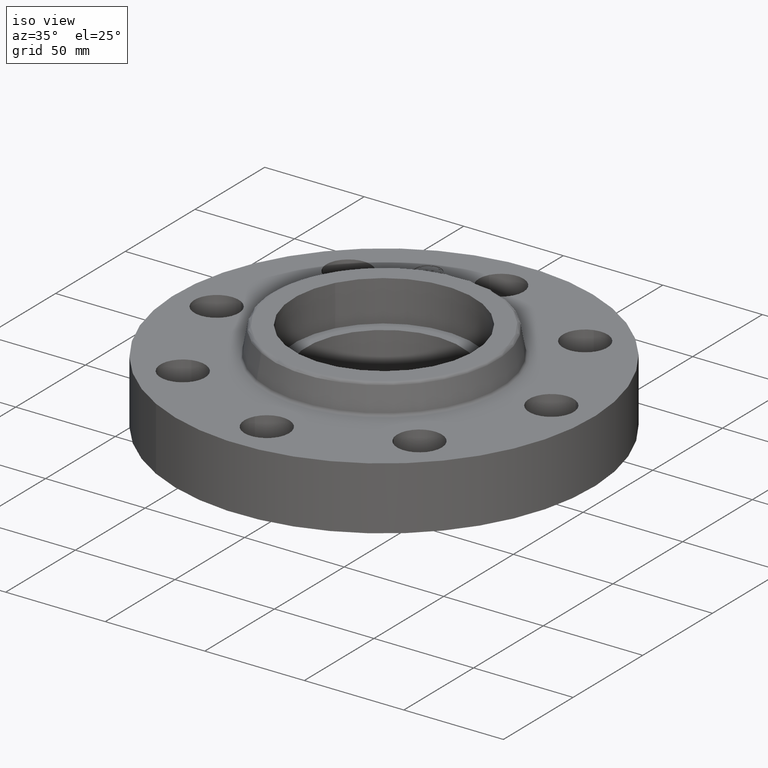
[diagram: clean part render]
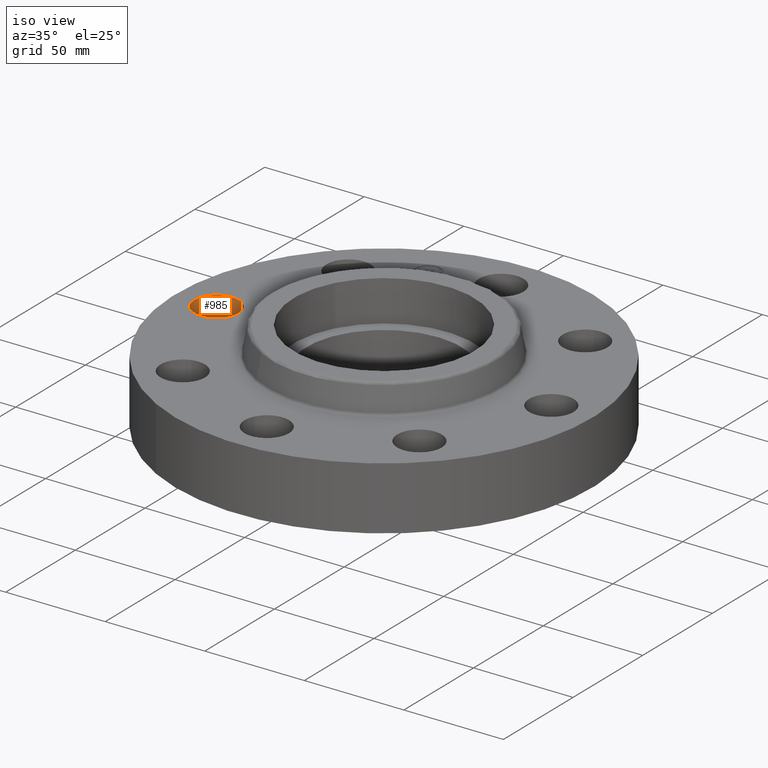
[diagram: same view with one face highlighted and labeled with its STEP entity id]
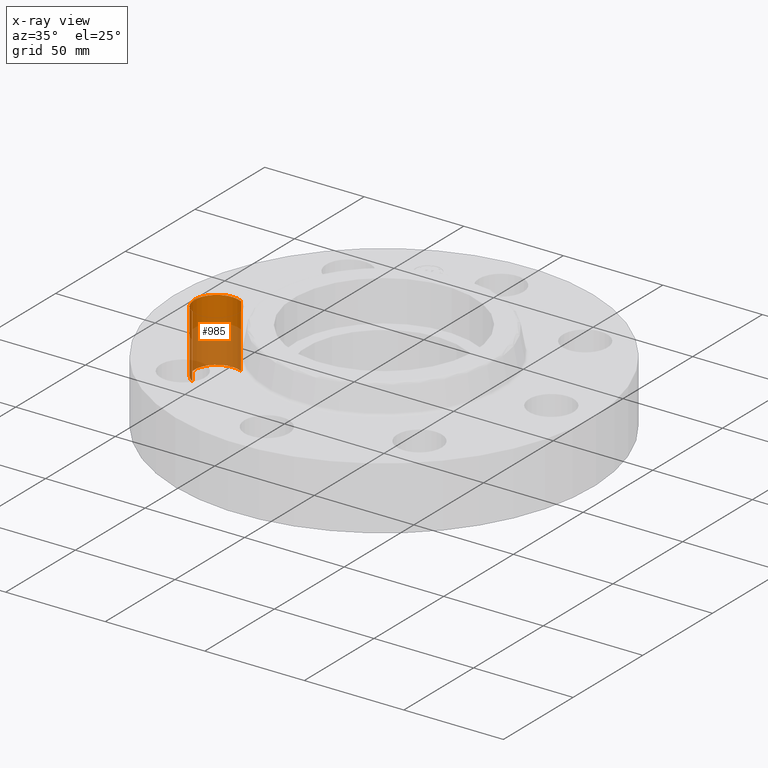
[diagram: x-ray of the same camera — body ghosted, the highlighted face saturated]
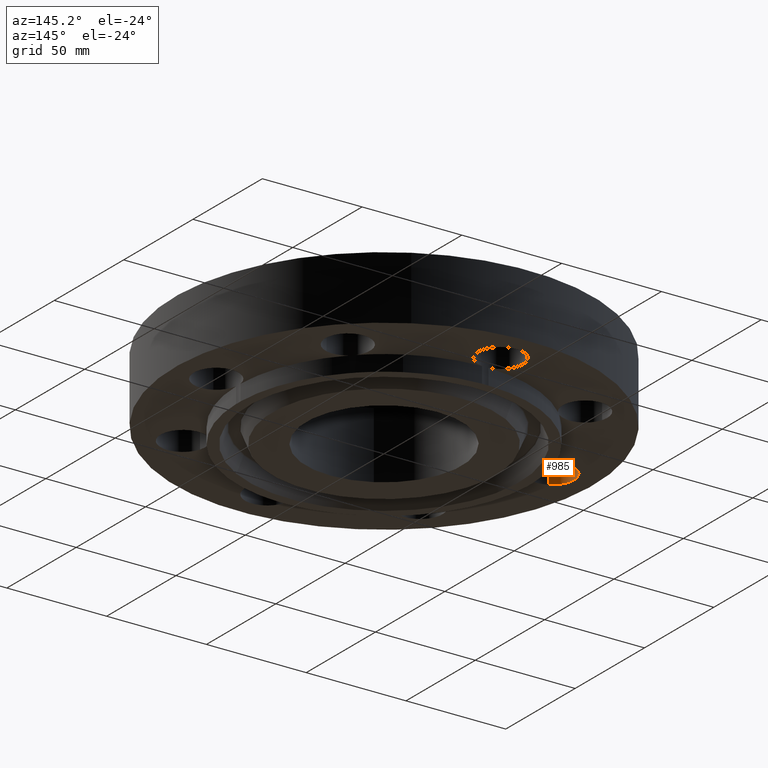
[diagram: same view with one face highlighted and labeled with its STEP entity id]
A machine part, iso view. The second image highlights one B-rep face of the part: STEP entity #985.
The next image is the same camera in x-ray: the body ghosted, the highlighted face saturated — about 59% of this face is hidden behind the body in this view.
A second angle (auxiliary view) of the same face is appended — the face is thin or edge-on in the first view.
In plain terms, the highlighted cylindrical surface (edge-blend (fillet) strip) has radius 11.176 mm, axis along (0, 0, -1).
Its self-contained STEP definition (entity closure, byte-faithful):
#715=AXIS2_PLACEMENT_3D('Circle Axis2P3D',#713,#714,$) ;
#958=AXIS2_PLACEMENT_3D('Cylinder Axis2P3D',#955,#956,#957) ;
#976=AXIS2_PLACEMENT_3D('Circle Axis2P3D',#974,#975,$) ;
#710=CARTESIAN_POINT('Vertex',(-3.09905276303,0.386136327233,0.)) ;
#713=CARTESIAN_POINT('Axis2P3D Location',(-3.31000000001,-5.59482469102E-016,0.)) ;
#717=CARTESIAN_POINT('Vertex',(-3.520947237,-0.386136327233,0.)) ;
#955=CARTESIAN_POINT('Axis2P3D Location',(-3.31000000001,-6.08037135779E-016,1.24606299213)) ;
#960=CARTESIAN_POINT('Line Origine',(-3.520947237,-0.386136327233,0.468500000002)) ;
#964=CARTESIAN_POINT('Vertex',(-3.520947237,-0.386136327233,1.25000000001)) ;
#967=CARTESIAN_POINT('Line Origine',(-3.09905276303,0.386136327233,0.468500000002)) ;
#971=CARTESIAN_POINT('Vertex',(-3.09905276303,0.386136327233,1.25000000001)) ;
#974=CARTESIAN_POINT('Axis2P3D Location',(-3.31000000001,-6.08037135779E-016,1.25000000001)) ;
#714=DIRECTION('Axis2P3D Direction',(0.,0.,-0.0393700787402)) ;
#956=DIRECTION('Axis2P3D Direction',(0.,0.,-0.0393700787402)) ;
#957=DIRECTION('Axis2P3D XDirection',(0.0188750212049,0.0345504945626,0.)) ;
#961=DIRECTION('Vector Direction',(0.,0.,-0.0393700787402)) ;
#968=DIRECTION('Vector Direction',(0.,0.,-0.0393700787402)) ;
#975=DIRECTION('Axis2P3D Direction',(0.,0.,-0.0393700787402)) ;
#962=VECTOR('Line Direction',#961,0.0393700787402) ;
#969=VECTOR('Line Direction',#968,0.0393700787402) ;
#980=ORIENTED_EDGE('',*,*,#966,.F.) ;
#981=ORIENTED_EDGE('',*,*,#719,.T.) ;
#982=ORIENTED_EDGE('',*,*,#973,.T.) ;
#983=ORIENTED_EDGE('',*,*,#978,.F.) ;
#985=ADVANCED_FACE('PartBody',(#984),#959,.F.) ;
#716=CIRCLE('generated circle',#715,0.440000000002) ;
#977=CIRCLE('generated circle',#976,0.440000000002) ;
#959=CYLINDRICAL_SURFACE('generated cylinder',#958,0.440000000002) ;
#719=EDGE_CURVE('',#718,#711,#716,.T.) ;
#966=EDGE_CURVE('',#718,#965,#963,.F.) ;
#973=EDGE_CURVE('',#711,#972,#970,.F.) ;
#978=EDGE_CURVE('',#965,#972,#977,.T.) ;
#979=EDGE_LOOP('',(#980,#981,#982,#983)) ;
#984=FACE_OUTER_BOUND('',#979,.T.) ;
#963=LINE('Line',#960,#962) ;
#970=LINE('Line',#967,#969) ;
#711=VERTEX_POINT('',#710) ;
#718=VERTEX_POINT('',#717) ;
#965=VERTEX_POINT('',#964) ;
#972=VERTEX_POINT('',#971) ;